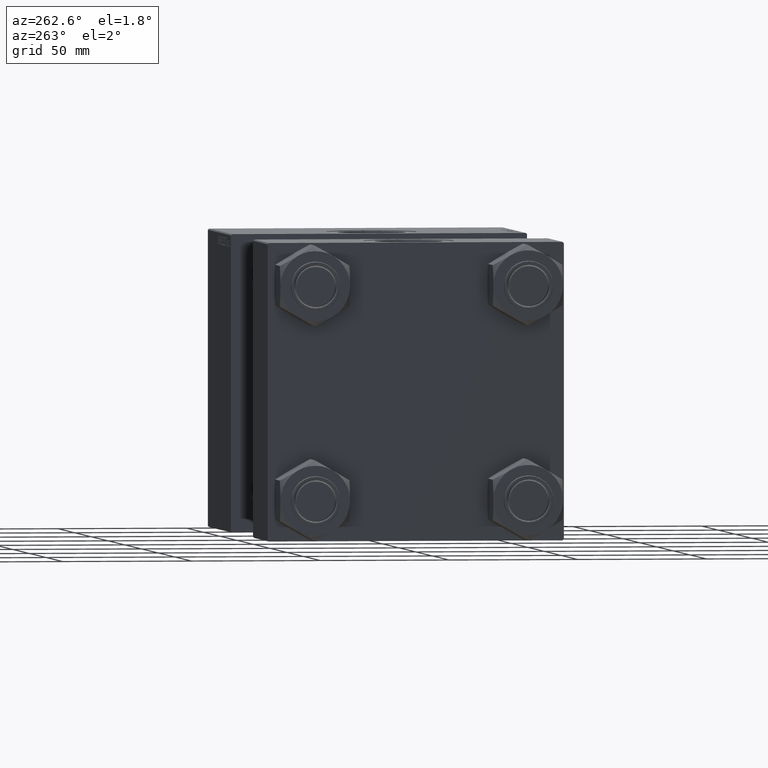
[diagram: clean part render]
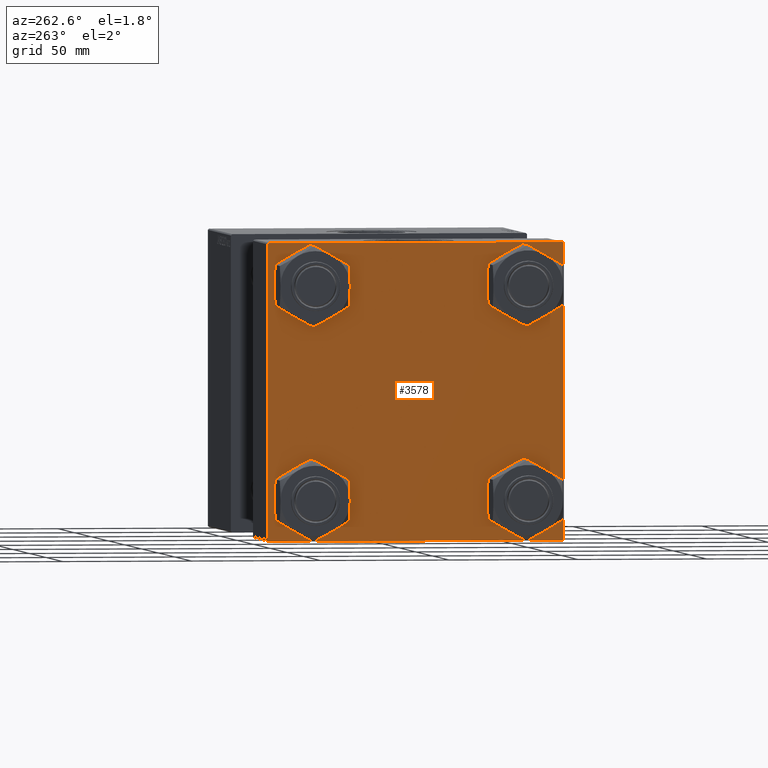
[diagram: same view with one face highlighted and labeled with its STEP entity id]
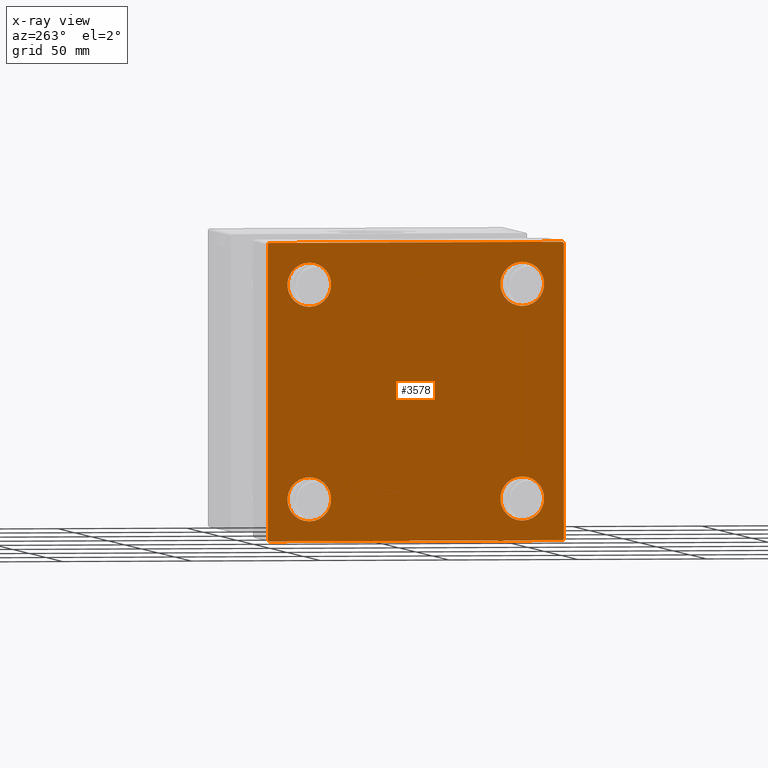
[diagram: x-ray of the same camera — body ghosted, the highlighted face saturated]
A machine part, auxiliary view. The second image highlights one B-rep face of the part: STEP entity #3578.
The next image is the same camera in x-ray: the body ghosted, the highlighted face saturated — about 0% of this face is hidden behind the body in this view.
In plain terms, the highlighted planar face has unit normal (-1, 0, 0).
Its self-contained STEP definition (entity closure, byte-faithful):
#46 = CARTESIAN_POINT ( 'NONE',  ( 0.000000000000000000, 57.49999999999999289, 57.50000000000000711 ) ) ;
#88 = LINE ( 'NONE', #35044, #30304 ) ;
#169 = AXIS2_PLACEMENT_3D ( 'NONE', #9168, #47542, #40791 ) ;
#1699 = CARTESIAN_POINT ( 'NONE',  ( 0.000000000000000000, 41.34999999999999432, -49.85000000000000142 ) ) ;
#1923 = CARTESIAN_POINT ( 'NONE',  ( 0.000000000000000000, 57.00000000000002132, -57.49999999999999289 ) ) ;
#3578 = ADVANCED_FACE ( 'NONE', ( #16130, #31820, #4829, #20504, #27456 ), #48004, .T. ) ;
#4232 = CARTESIAN_POINT ( 'NONE',  ( 0.000000000000000000, -57.50000000000000711, -57.00000000000000711 ) ) ;
#4678 = VERTEX_POINT ( 'NONE', #28590 ) ;
#4829 = FACE_BOUND ( 'NONE', #12885, .T. ) ;
#5087 = DIRECTION ( 'NONE',  ( -0.000000000000000000, 0.000000000000000000, 1.000000000000000000 ) ) ;
#5351 = AXIS2_PLACEMENT_3D ( 'NONE', #18488, #23109, #26703 ) ;
#5755 = AXIS2_PLACEMENT_3D ( 'NONE', #45063, #18574, #33514 ) ;
#6130 = EDGE_CURVE ( 'NONE', #7754, #36859, #15333, .T. ) ;
#6200 = CARTESIAN_POINT ( 'NONE',  ( 0.000000000000000000, -41.34999999999998721, -49.85000000000000853 ) ) ;
#6869 = LINE ( 'NONE', #25892, #22914 ) ;
#7337 = ORIENTED_EDGE ( 'NONE', *, *, #23595, .T. ) ;
#7397 = LINE ( 'NONE', #38758, #45107 ) ;
#7594 = VERTEX_POINT ( 'NONE', #1923 ) ;
#7754 = VERTEX_POINT ( 'NONE', #47370 ) ;
#7977 = VECTOR ( 'NONE', #14254, 1000.000000000000114 ) ;
#8328 = DIRECTION ( 'NONE',  ( 1.000000000000000000, -0.000000000000000000, 0.000000000000000000 ) ) ;
#8471 = EDGE_LOOP ( 'NONE', ( #11712, #30659, #28056, #39540, #20062, #43074, #44366, #48239 ) ) ;
#8678 = EDGE_CURVE ( 'NONE', #15919, #4678, #11179, .T. ) ;
#8962 = EDGE_CURVE ( 'NONE', #41002, #28408, #42205, .T. ) ;
#9168 = CARTESIAN_POINT ( 'NONE',  ( 0.000000000000000000, -41.34999999999998721, -41.35000000000000853 ) ) ;
#9861 = CARTESIAN_POINT ( 'NONE',  ( 0.000000000000000000, -57.00000000000000711, -57.50000000000000711 ) ) ;
#10293 = VERTEX_POINT ( 'NONE', #4232 ) ;
#10443 = DIRECTION ( 'NONE',  ( 1.000000000000000000, -0.000000000000000000, 0.000000000000000000 ) ) ;
#10945 = CARTESIAN_POINT ( 'NONE',  ( 0.000000000000000000, -41.34999999999998721, 41.35000000000000853 ) ) ;
#11179 = CIRCLE ( 'NONE', #12822, 8.499999999999992895 ) ;
#11253 = VERTEX_POINT ( 'NONE', #9861 ) ;
#11642 = DIRECTION ( 'NONE',  ( 0.000000000000000000, 0.000000000000000000, -1.000000000000000000 ) ) ;
#11672 = DIRECTION ( 'NONE',  ( 0.000000000000000000, 0.000000000000000000, 1.000000000000000000 ) ) ;
#11712 = ORIENTED_EDGE ( 'NONE', *, *, #42978, .T. ) ;
#12175 = CARTESIAN_POINT ( 'NONE',  ( 0.000000000000000000, 41.34999999999999432, -41.35000000000000142 ) ) ;
#12279 = AXIS2_PLACEMENT_3D ( 'NONE', #10945, #10443, #37712 ) ;
#12347 = AXIS2_PLACEMENT_3D ( 'NONE', #50299, #19193, #30517 ) ;
#12822 = AXIS2_PLACEMENT_3D ( 'NONE', #16269, #31963, #28348 ) ;
#12885 = EDGE_LOOP ( 'NONE', ( #21242, #13048 ) ) ;
#13048 = ORIENTED_EDGE ( 'NONE', *, *, #44387, .T. ) ;
#13199 = ORIENTED_EDGE ( 'NONE', *, *, #8678, .T. ) ;
#14254 = DIRECTION ( 'NONE',  ( -0.000000000000000000, -0.7071067811865376918, -0.7071067811865573427 ) ) ;
#14769 = EDGE_CURVE ( 'NONE', #41002, #27380, #22938, .T. ) ;
#15293 = VECTOR ( 'NONE', #16706, 1000.000000000000000 ) ;
#15333 = CIRCLE ( 'NONE', #28442, 8.499999999999992895 ) ;
#15672 = VECTOR ( 'NONE', #31019, 1000.000000000000000 ) ;
#15919 = VERTEX_POINT ( 'NONE', #43870 ) ;
#16130 = FACE_BOUND ( 'NONE', #40473, .T. ) ;
#16269 = CARTESIAN_POINT ( 'NONE',  ( 0.000000000000000000, 41.34999999999999432, 41.35000000000000142 ) ) ;
#16355 = CARTESIAN_POINT ( 'NONE',  ( 0.000000000000000000, 41.34999999999999432, -32.85000000000000853 ) ) ;
#16379 = EDGE_CURVE ( 'NONE', #38162, #10293, #88, .T. ) ;
#16418 = CIRCLE ( 'NONE', #5755, 8.499999999999992895 ) ;
#16706 = DIRECTION ( 'NONE',  ( 0.000000000000000000, -1.000000000000000000, -1.206764157201257045E-16 ) ) ;
#16831 = EDGE_CURVE ( 'NONE', #36859, #7754, #23759, .T. ) ;
#17403 = CIRCLE ( 'NONE', #169, 8.499999999999992895 ) ;
#18063 = EDGE_CURVE ( 'NONE', #47939, #23789, #16418, .T. ) ;
#18488 = CARTESIAN_POINT ( 'NONE',  ( 0.000000000000000000, 41.34999999999999432, 41.35000000000000142 ) ) ;
#18574 = DIRECTION ( 'NONE',  ( 1.000000000000000000, -0.000000000000000000, 0.000000000000000000 ) ) ;
#18833 = CIRCLE ( 'NONE', #34447, 8.499999999999992895 ) ;
#19193 = DIRECTION ( 'NONE',  ( 1.000000000000000000, -0.000000000000000000, 0.000000000000000000 ) ) ;
#20062 = ORIENTED_EDGE ( 'NONE', *, *, #16379, .F. ) ;
#20504 = FACE_BOUND ( 'NONE', #23483, .T. ) ;
#21242 = ORIENTED_EDGE ( 'NONE', *, *, #18063, .T. ) ;
#21560 = CARTESIAN_POINT ( 'NONE',  ( 0.000000000000000000, -57.00000000000003553, 57.49999999999999289 ) ) ;
#22058 = VECTOR ( 'NONE', #23433, 1000.000000000000114 ) ;
#22101 = CARTESIAN_POINT ( 'NONE',  ( 0.000000000000000000, -41.34999999999998721, 41.35000000000000853 ) ) ;
#22135 = LINE ( 'NONE', #37305, #24514 ) ;
#22914 = VECTOR ( 'NONE', #41592, 1000.000000000000000 ) ;
#22938 = LINE ( 'NONE', #34768, #22058 ) ;
#23109 = DIRECTION ( 'NONE',  ( 1.000000000000000000, -0.000000000000000000, 0.000000000000000000 ) ) ;
#23433 = DIRECTION ( 'NONE',  ( 0.000000000000000000, 0.7071067811865573427, -0.7071067811865376918 ) ) ;
#23483 = EDGE_LOOP ( 'NONE', ( #30055, #13199 ) ) ;
#23595 = EDGE_CURVE ( 'NONE', #44713, #32186, #28756, .T. ) ;
#23759 = CIRCLE ( 'NONE', #12279, 8.499999999999992895 ) ;
#23789 = VERTEX_POINT ( 'NONE', #1699 ) ;
#24440 = CARTESIAN_POINT ( 'NONE',  ( 0.000000000000000000, -41.34999999999998721, -32.85000000000001563 ) ) ;
#24514 = VECTOR ( 'NONE', #49617, 1000.000000000000114 ) ;
#24610 = DIRECTION ( 'NONE',  ( -1.000000000000000000, 0.000000000000000000, -0.000000000000000000 ) ) ;
#25033 = EDGE_LOOP ( 'NONE', ( #7337, #41284 ) ) ;
#25892 = CARTESIAN_POINT ( 'NONE',  ( 0.000000000000000000, 57.49999999999999289, 57.50000000000000711 ) ) ;
#26703 = DIRECTION ( 'NONE',  ( 0.000000000000000000, 0.000000000000000000, 1.000000000000000000 ) ) ;
#26745 = AXIS2_PLACEMENT_3D ( 'NONE', #43133, #24610, #5087 ) ;
#26847 = EDGE_CURVE ( 'NONE', #4678, #15919, #31505, .T. ) ;
#27380 = VERTEX_POINT ( 'NONE', #39747 ) ;
#27456 = FACE_OUTER_BOUND ( 'NONE', #8471, .T. ) ;
#28056 = ORIENTED_EDGE ( 'NONE', *, *, #46998, .T. ) ;
#28122 = CARTESIAN_POINT ( 'NONE',  ( 0.000000000000000000, 57.00000000000000711, 57.50000000000000711 ) ) ;
#28348 = DIRECTION ( 'NONE',  ( 0.000000000000000000, 0.000000000000000000, 1.000000000000000000 ) ) ;
#28408 = VERTEX_POINT ( 'NONE', #21560 ) ;
#28442 = AXIS2_PLACEMENT_3D ( 'NONE', #22101, #37786, #30562 ) ;
#28590 = CARTESIAN_POINT ( 'NONE',  ( 0.000000000000000000, 41.34999999999999432, 49.85000000000000142 ) ) ;
#28756 = CIRCLE ( 'NONE', #12347, 8.499999999999992895 ) ;
#28792 = CARTESIAN_POINT ( 'NONE',  ( 0.000000000000000000, -57.50000000000000711, 57.00000000000000711 ) ) ;
#30055 = ORIENTED_EDGE ( 'NONE', *, *, #26847, .T. ) ;
#30304 = VECTOR ( 'NONE', #11642, 1000.000000000000000 ) ;
#30517 = DIRECTION ( 'NONE',  ( 0.000000000000000000, 0.000000000000000000, 1.000000000000000000 ) ) ;
#30562 = DIRECTION ( 'NONE',  ( 0.000000000000000000, 0.000000000000000000, 1.000000000000000000 ) ) ;
#30659 = ORIENTED_EDGE ( 'NONE', *, *, #35942, .T. ) ;
#31019 = DIRECTION ( 'NONE',  ( 0.000000000000000000, -1.000000000000000000, -1.206764157201257045E-16 ) ) ;
#31505 = CIRCLE ( 'NONE', #5351, 8.499999999999992895 ) ;
#31820 = FACE_BOUND ( 'NONE', #25033, .T. ) ;
#31963 = DIRECTION ( 'NONE',  ( 1.000000000000000000, -0.000000000000000000, 0.000000000000000000 ) ) ;
#32186 = VERTEX_POINT ( 'NONE', #6200 ) ;
#33514 = DIRECTION ( 'NONE',  ( 0.000000000000000000, 0.000000000000000000, 1.000000000000000000 ) ) ;
#34053 = CARTESIAN_POINT ( 'NONE',  ( 0.000000000000000000, 57.25000000000081712, -57.24999999999922551 ) ) ;
#34447 = AXIS2_PLACEMENT_3D ( 'NONE', #12175, #8328, #11672 ) ;
#34768 = CARTESIAN_POINT ( 'NONE',  ( 0.000000000000000000, 57.24999999999922551, 57.25000000000081712 ) ) ;
#35044 = CARTESIAN_POINT ( 'NONE',  ( 0.000000000000000000, -57.50000000000000711, 57.49999999999999289 ) ) ;
#35942 = EDGE_CURVE ( 'NONE', #48240, #7594, #49471, .T. ) ;
#36859 = VERTEX_POINT ( 'NONE', #48769 ) ;
#37142 = ORIENTED_EDGE ( 'NONE', *, *, #16831, .T. ) ;
#37305 = CARTESIAN_POINT ( 'NONE',  ( -0.000000000000000000, -57.25000000000081712, 57.24999999999922551 ) ) ;
#37712 = DIRECTION ( 'NONE',  ( 0.000000000000000000, 0.000000000000000000, 1.000000000000000000 ) ) ;
#37786 = DIRECTION ( 'NONE',  ( 1.000000000000000000, -0.000000000000000000, 0.000000000000000000 ) ) ;
#38162 = VERTEX_POINT ( 'NONE', #28792 ) ;
#38500 = DIRECTION ( 'NONE',  ( 0.000000000000000000, -0.7071067811865474617, 0.7071067811865474617 ) ) ;
#38758 = CARTESIAN_POINT ( 'NONE',  ( 0.000000000000000000, -57.25000000000000711, -57.25000000000000711 ) ) ;
#39540 = ORIENTED_EDGE ( 'NONE', *, *, #44805, .T. ) ;
#39747 = CARTESIAN_POINT ( 'NONE',  ( 0.000000000000000000, 57.49999999999999289, 57.00000000000003553 ) ) ;
#40473 = EDGE_LOOP ( 'NONE', ( #37142, #41549 ) ) ;
#40791 = DIRECTION ( 'NONE',  ( 0.000000000000000000, 0.000000000000000000, 1.000000000000000000 ) ) ;
#41002 = VERTEX_POINT ( 'NONE', #28122 ) ;
#41284 = ORIENTED_EDGE ( 'NONE', *, *, #50314, .T. ) ;
#41549 = ORIENTED_EDGE ( 'NONE', *, *, #6130, .T. ) ;
#41592 = DIRECTION ( 'NONE',  ( 0.000000000000000000, 0.000000000000000000, -1.000000000000000000 ) ) ;
#42173 = EDGE_CURVE ( 'NONE', #38162, #28408, #22135, .T. ) ;
#42205 = LINE ( 'NONE', #46, #15293 ) ;
#42978 = EDGE_CURVE ( 'NONE', #27380, #48240, #6869, .T. ) ;
#43074 = ORIENTED_EDGE ( 'NONE', *, *, #42173, .T. ) ;
#43133 = CARTESIAN_POINT ( 'NONE',  ( 0.000000000000000000, 0.000000000000000000, 0.000000000000000000 ) ) ;
#43870 = CARTESIAN_POINT ( 'NONE',  ( 0.000000000000000000, 41.34999999999999432, 32.85000000000000853 ) ) ;
#44366 = ORIENTED_EDGE ( 'NONE', *, *, #8962, .F. ) ;
#44387 = EDGE_CURVE ( 'NONE', #23789, #47939, #18833, .T. ) ;
#44713 = VERTEX_POINT ( 'NONE', #24440 ) ;
#44805 = EDGE_CURVE ( 'NONE', #11253, #10293, #7397, .T. ) ;
#45063 = CARTESIAN_POINT ( 'NONE',  ( 0.000000000000000000, 41.34999999999999432, -41.35000000000000142 ) ) ;
#45107 = VECTOR ( 'NONE', #38500, 1000.000000000000114 ) ;
#46201 = CARTESIAN_POINT ( 'NONE',  ( 0.000000000000000000, 57.49999999999999289, -57.49999999999999289 ) ) ;
#46955 = LINE ( 'NONE', #46201, #15672 ) ;
#46998 = EDGE_CURVE ( 'NONE', #7594, #11253, #46955, .T. ) ;
#47370 = CARTESIAN_POINT ( 'NONE',  ( 0.000000000000000000, -41.34999999999998721, 32.85000000000001563 ) ) ;
#47542 = DIRECTION ( 'NONE',  ( 1.000000000000000000, -0.000000000000000000, 0.000000000000000000 ) ) ;
#47939 = VERTEX_POINT ( 'NONE', #16355 ) ;
#48004 = PLANE ( 'NONE',  #26745 ) ;
#48239 = ORIENTED_EDGE ( 'NONE', *, *, #14769, .T. ) ;
#48240 = VERTEX_POINT ( 'NONE', #48595 ) ;
#48595 = CARTESIAN_POINT ( 'NONE',  ( 0.000000000000000000, 57.49999999999999289, -57.00000000000000711 ) ) ;
#48769 = CARTESIAN_POINT ( 'NONE',  ( 0.000000000000000000, -41.34999999999998721, 49.85000000000000853 ) ) ;
#49471 = LINE ( 'NONE', #34053, #7977 ) ;
#49617 = DIRECTION ( 'NONE',  ( -0.000000000000000000, 0.7071067811865376918, 0.7071067811865573427 ) ) ;
#50299 = CARTESIAN_POINT ( 'NONE',  ( 0.000000000000000000, -41.34999999999998721, -41.35000000000000853 ) ) ;
#50314 = EDGE_CURVE ( 'NONE', #32186, #44713, #17403, .T. ) ;